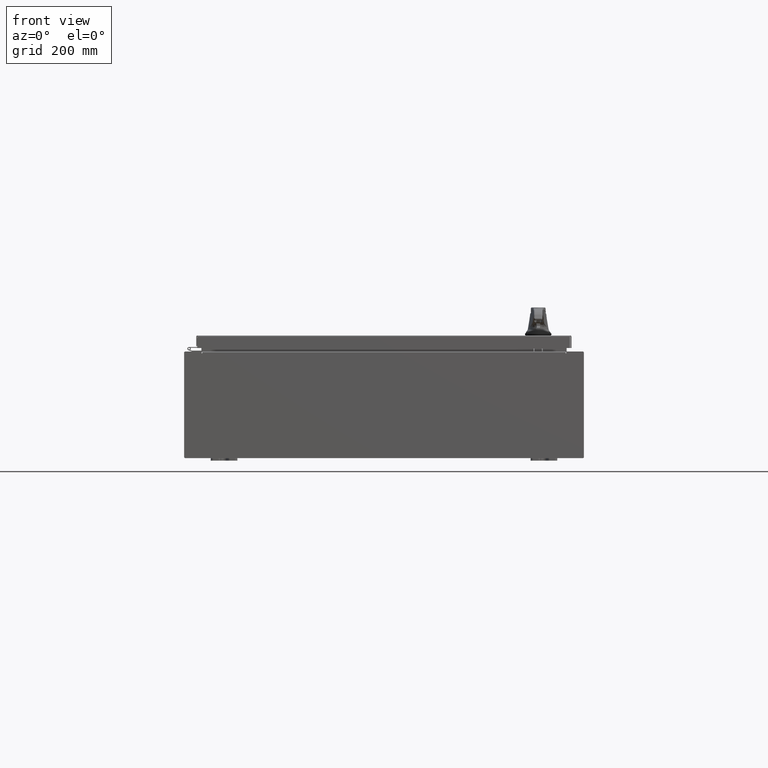
[diagram: clean part render]
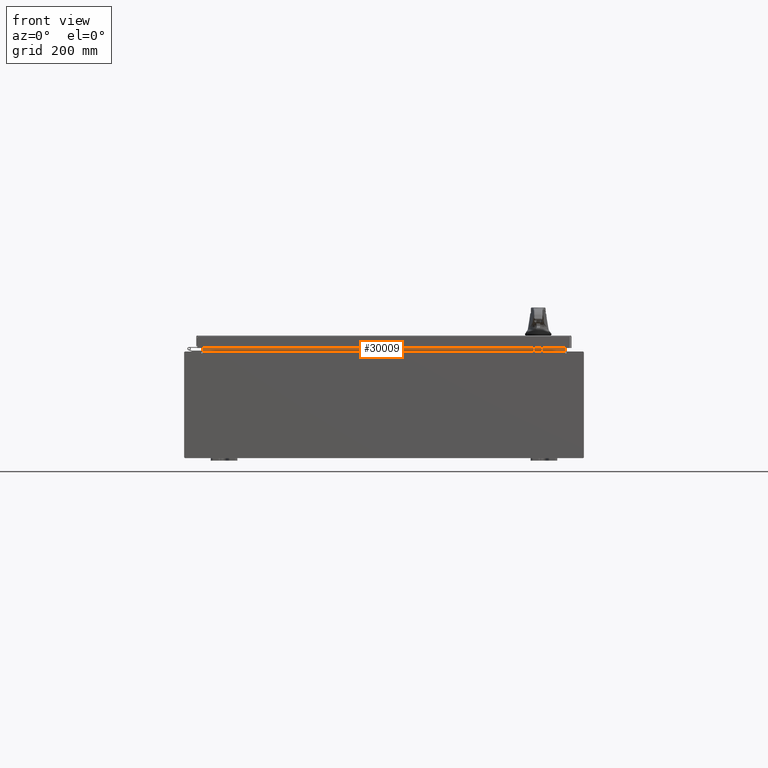
[diagram: same view with one face highlighted and labeled with its STEP entity id]
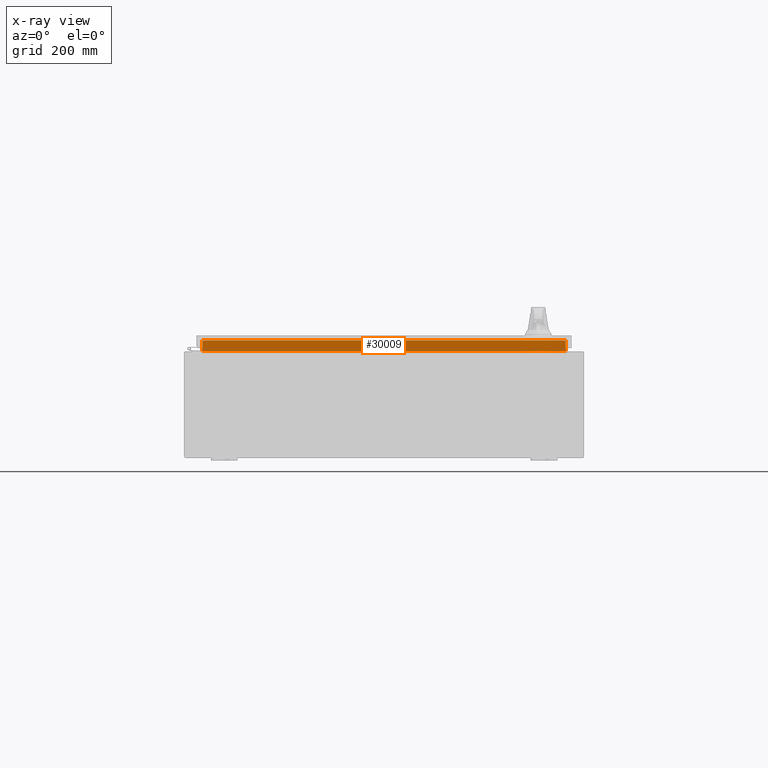
[diagram: x-ray of the same camera — body ghosted, the highlighted face saturated]
A machine part, front view. The second image highlights one B-rep face of the part: STEP entity #30009.
The next image is the same camera in x-ray: the body ghosted, the highlighted face saturated — about 0% of this face is hidden behind the body in this view.
In plain terms, the highlighted planar face has unit normal (0, -1, 0).
Its self-contained STEP definition (entity closure, byte-faithful):
#382 = CARTESIAN_POINT ( 'NONE',  ( 13.63720000000000400, -1.300299999999999800, 4.837600000000003700 ) ) ;
#2052 = EDGE_CURVE ( 'NONE', #58890, #82406, #108570, .T. ) ;
#3137 = CARTESIAN_POINT ( 'NONE',  ( -13.63719999999999800, -1.300299999999999800, 4.013000000000003500 ) ) ;
#5707 = VERTEX_POINT ( 'NONE', #22206 ) ;
#6000 = DIRECTION ( 'NONE',  ( 0.0000000000000000000, 1.000000000000000000, 0.0000000000000000000 ) ) ;
#9594 = LINE ( 'NONE', #56280, #118350 ) ;
#14095 = AXIS2_PLACEMENT_3D ( 'NONE', #45713, #6000, #75538 ) ;
#22206 = CARTESIAN_POINT ( 'NONE',  ( -13.63719999999999800, -1.300299999999999300, 4.837600000000003700 ) ) ;
#23755 = VERTEX_POINT ( 'NONE', #3137 ) ;
#26918 = VECTOR ( 'NONE', #86904, 39.37007874015748100 ) ;
#30009 = ADVANCED_FACE ( 'NONE', ( #66348 ), #35742, .T. ) ;
#35222 = ORIENTED_EDGE ( 'NONE', *, *, #86766, .F. ) ;
#35742 = PLANE ( 'NONE',  #14095 ) ;
#45713 = CARTESIAN_POINT ( 'NONE',  ( 0.0000000000000000000, -1.300299999999999800, 0.0000000000000000000 ) ) ;
#47276 = EDGE_LOOP ( 'NONE', ( #126129, #35222, #107916, #78170 ) ) ;
#52895 = VECTOR ( 'NONE', #122104, 39.37007874015748100 ) ;
#53369 = LINE ( 'NONE', #56671, #26918 ) ;
#56280 = CARTESIAN_POINT ( 'NONE',  ( 13.63720000000000400, -1.300299999999999300, 4.837600000000003700 ) ) ;
#56671 = CARTESIAN_POINT ( 'NONE',  ( -13.63719999999999800, -1.300299999999999800, 4.000000000000004400 ) ) ;
#58890 = VERTEX_POINT ( 'NONE', #73789 ) ;
#66221 = DIRECTION ( 'NONE',  ( -1.000000000000000000, -0.0000000000000000000, -0.0000000000000000000 ) ) ;
#66348 = FACE_OUTER_BOUND ( 'NONE', #47276, .T. ) ;
#73789 = CARTESIAN_POINT ( 'NONE',  ( 13.63720000000000000, -1.300299999999999800, 4.013000000000003500 ) ) ;
#75538 = DIRECTION ( 'NONE',  ( 0.0000000000000000000, -0.0000000000000000000, 1.000000000000000000 ) ) ;
#78170 = ORIENTED_EDGE ( 'NONE', *, *, #81497, .F. ) ;
#78723 = DIRECTION ( 'NONE',  ( 1.000000000000000000, 0.0000000000000000000, -2.003232330437526000E-017 ) ) ;
#81497 = EDGE_CURVE ( 'NONE', #23755, #58890, #114173, .T. ) ;
#82406 = VERTEX_POINT ( 'NONE', #382 ) ;
#86006 = EDGE_CURVE ( 'NONE', #5707, #23755, #53369, .T. ) ;
#86766 = EDGE_CURVE ( 'NONE', #82406, #5707, #9594, .T. ) ;
#86904 = DIRECTION ( 'NONE',  ( -0.0000000000000000000, -0.0000000000000000000, -1.000000000000000000 ) ) ;
#87767 = VECTOR ( 'NONE', #78723, 39.37007874015748100 ) ;
#106589 = CARTESIAN_POINT ( 'NONE',  ( 13.63720000000000400, -1.300299999999999800, 4.925300000000004500 ) ) ;
#107916 = ORIENTED_EDGE ( 'NONE', *, *, #2052, .F. ) ;
#108069 = CARTESIAN_POINT ( 'NONE',  ( -13.63719999999999800, -1.300299999999999800, 4.013000000000003500 ) ) ;
#108570 = LINE ( 'NONE', #106589, #52895 ) ;
#114173 = LINE ( 'NONE', #108069, #87767 ) ;
#118350 = VECTOR ( 'NONE', #66221, 39.37007874015748100 ) ;
#122104 = DIRECTION ( 'NONE',  ( -0.0000000000000000000, -0.0000000000000000000, 1.000000000000000000 ) ) ;
#126129 = ORIENTED_EDGE ( 'NONE', *, *, #86006, .F. ) ;